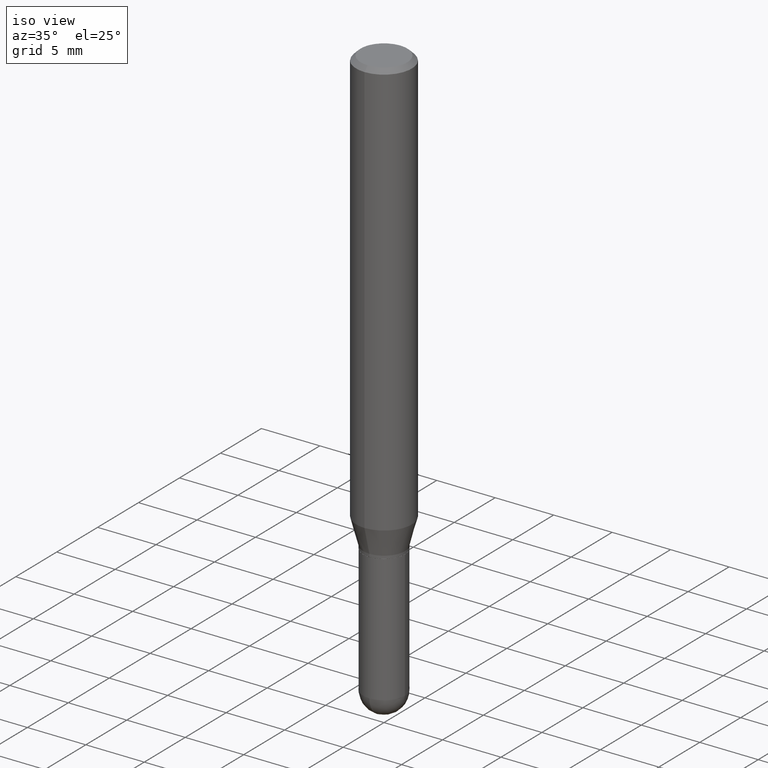
[diagram: clean part render]
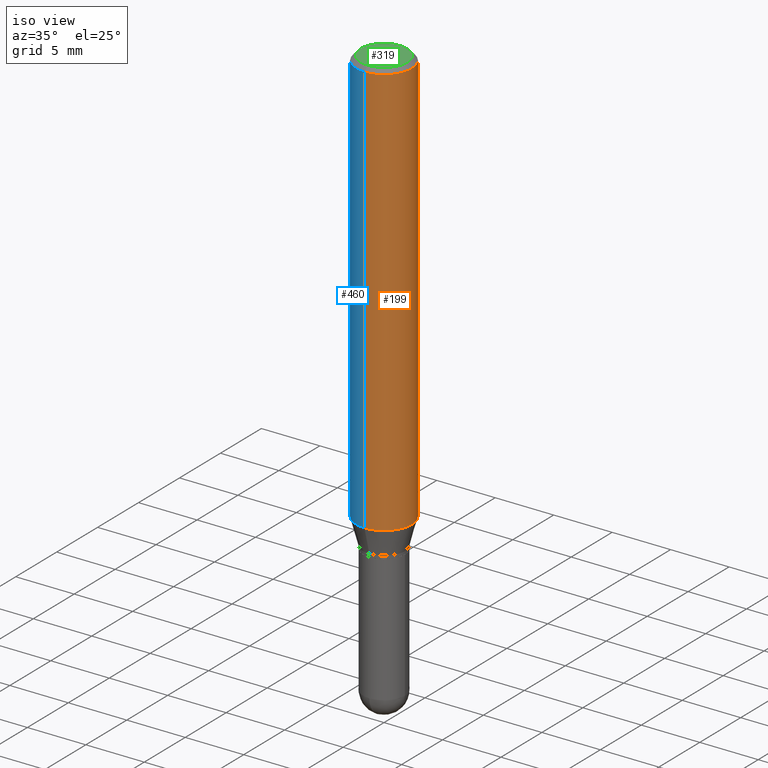
[diagram: same view with three faces highlighted in distinct colors, each labeled with its STEP entity id]
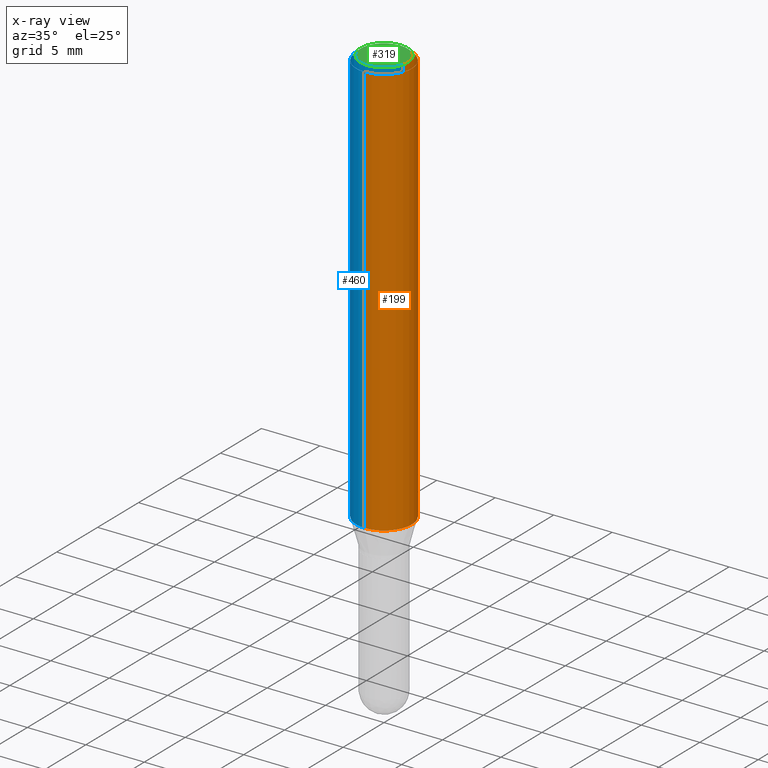
[diagram: x-ray of the same camera — body ghosted, the three highlighted faces saturated]
A machine part, iso view with three faces highlighted in distinct colors.
The next image is the same camera in x-ray (body ghosted, the three faces saturated) — at least one of them is partly hidden behind the body in this view.
Their STEP definitions:

[orange] entity #199 — the highlighted cylindrical surface (edge-blend (fillet) strip) has radius 2.3813 mm, axis along (-0, 0, 1).
#4 = DIRECTION ( 'NONE',  ( -6.982962677686265922E-15, -1.000000000000000000, 3.491768147958502402E-15 ) ) ;
#22 = ORIENTED_EDGE ( 'NONE', *, *, #68, .F. ) ;
#39 = AXIS2_PLACEMENT_3D ( 'NONE', #208, #246, #4 ) ;
#45 = ORIENTED_EDGE ( 'NONE', *, *, #356, .T. ) ;
#60 = CARTESIAN_POINT ( 'NONE',  ( -6.546527510330530901E-16, -0.09375000000000488498, -1.402483408562508638 ) ) ;
#68 = EDGE_CURVE ( 'NONE', #171, #455, #138, .T. ) ;
#81 = DIRECTION ( 'NONE',  ( -2.445268528450320675E-29, 3.491768147958502797E-15, 1.000000000000000000 ) ) ;
#98 = DIRECTION ( 'NONE',  ( -6.982962677686265922E-15, -1.000000000000000000, 3.483106191921935160E-15 ) ) ;
#111 = VECTOR ( 'NONE', #487, 39.37007874015748143 ) ;
#118 = EDGE_CURVE ( 'NONE', #229, #171, #322, .T. ) ;
#120 = CARTESIAN_POINT ( 'NONE',  ( -6.546527510330875041E-16, -0.09375000000000001388, 3.273532638711096618E-16 ) ) ;
#138 = CIRCLE ( 'NONE', #180, 0.09375000000000001388 ) ;
#145 = CARTESIAN_POINT ( 'NONE',  ( 6.661338147750938256E-16, 0.09375000000000001388, -3.273532638711096618E-16 ) ) ;
#165 = VERTEX_POINT ( 'NONE', #327 ) ;
#171 = VERTEX_POINT ( 'NONE', #391 ) ;
#180 = AXIS2_PLACEMENT_3D ( 'NONE', #186, #406, #98 ) ;
#182 = EDGE_CURVE ( 'NONE', #229, #165, #359, .T. ) ;
#186 = CARTESIAN_POINT ( 'NONE',  ( 3.667902792675498004E-31, -5.237652221937778058E-17, -0.01500000000000006883 ) ) ;
#190 = ORIENTED_EDGE ( 'NONE', *, *, #182, .T. ) ;
#199 = ADVANCED_FACE ( 'NONE', ( #469 ), #361, .T. ) ;
#208 = CARTESIAN_POINT ( 'NONE',  ( 0.000000000000000000, 0.000000000000000000, 0.000000000000000000 ) ) ;
#223 = CARTESIAN_POINT ( 'NONE',  ( 6.661338147751283383E-16, 0.09374999999999994449, -0.01500000000000039496 ) ) ;
#229 = VERTEX_POINT ( 'NONE', #60 ) ;
#246 = DIRECTION ( 'NONE',  ( -2.445268528450320675E-29, 3.491768147958502797E-15, 1.000000000000000000 ) ) ;
#285 = DIRECTION ( 'NONE',  ( -6.982962677686265922E-15, -1.000000000000000000, 2.913971193241880372E-15 ) ) ;
#289 = EDGE_LOOP ( 'NONE', ( #190, #45, #22, #429 ) ) ;
#297 = AXIS2_PLACEMENT_3D ( 'NONE', #325, #81, #285 ) ;
#322 = LINE ( 'NONE', #120, #420 ) ;
#325 = CARTESIAN_POINT ( 'NONE',  ( 3.429448540631636149E-29, -4.897146894058840106E-15, -1.402483408562508860 ) ) ;
#327 = CARTESIAN_POINT ( 'NONE',  ( 6.661338147751283383E-16, 0.09374999999999512890, -1.402483408562509304 ) ) ;
#341 = LINE ( 'NONE', #145, #111 ) ;
#356 = EDGE_CURVE ( 'NONE', #165, #455, #341, .T. ) ;
#359 = CIRCLE ( 'NONE', #297, 0.09375000000000001388 ) ;
#361 = CYLINDRICAL_SURFACE ( 'NONE', #39, 0.09375000000000001388 ) ;
#391 = CARTESIAN_POINT ( 'NONE',  ( -6.546527510330871097E-16, -0.09375000000000005551, -0.01499999999999974097 ) ) ;
#406 = DIRECTION ( 'NONE',  ( -2.445268528450320675E-29, 3.491768147958502797E-15, 1.000000000000000000 ) ) ;
#420 = VECTOR ( 'NONE', #467, 39.37007874015748143 ) ;
#429 = ORIENTED_EDGE ( 'NONE', *, *, #118, .F. ) ;
#455 = VERTEX_POINT ( 'NONE', #223 ) ;
#467 = DIRECTION ( 'NONE',  ( -2.445268528450320675E-29, 3.491768147958502797E-15, 1.000000000000000000 ) ) ;
#469 = FACE_OUTER_BOUND ( 'NONE', #289, .T. ) ;
#487 = DIRECTION ( 'NONE',  ( -2.445268528450320675E-29, 3.491768147958502797E-15, 1.000000000000000000 ) ) ;

[blue] entity #460 — the highlighted cylindrical surface (edge-blend (fillet) strip) has radius 2.3813 mm, axis along (-0, 0, 1).
#42 = DIRECTION ( 'NONE',  ( -6.982962677686265922E-15, -1.000000000000000000, 3.483106191921935160E-15 ) ) ;
#60 = CARTESIAN_POINT ( 'NONE',  ( -6.546527510330530901E-16, -0.09375000000000488498, -1.402483408562508638 ) ) ;
#88 = FACE_OUTER_BOUND ( 'NONE', #203, .T. ) ;
#111 = VECTOR ( 'NONE', #487, 39.37007874015748143 ) ;
#118 = EDGE_CURVE ( 'NONE', #229, #171, #322, .T. ) ;
#120 = CARTESIAN_POINT ( 'NONE',  ( -6.546527510330875041E-16, -0.09375000000000001388, 3.273532638711096618E-16 ) ) ;
#139 = ORIENTED_EDGE ( 'NONE', *, *, #118, .T. ) ;
#145 = CARTESIAN_POINT ( 'NONE',  ( 6.661338147750938256E-16, 0.09375000000000001388, -3.273532638711096618E-16 ) ) ;
#157 = CIRCLE ( 'NONE', #344, 0.09375000000000001388 ) ;
#165 = VERTEX_POINT ( 'NONE', #327 ) ;
#171 = VERTEX_POINT ( 'NONE', #391 ) ;
#203 = EDGE_LOOP ( 'NONE', ( #317, #213, #139, #221 ) ) ;
#213 = ORIENTED_EDGE ( 'NONE', *, *, #252, .T. ) ;
#216 = DIRECTION ( 'NONE',  ( -6.982962677686265922E-15, -1.000000000000000000, 3.491768147958502402E-15 ) ) ;
#217 = EDGE_CURVE ( 'NONE', #455, #171, #157, .T. ) ;
#221 = ORIENTED_EDGE ( 'NONE', *, *, #217, .F. ) ;
#223 = CARTESIAN_POINT ( 'NONE',  ( 6.661338147751283383E-16, 0.09374999999999994449, -0.01500000000000039496 ) ) ;
#229 = VERTEX_POINT ( 'NONE', #60 ) ;
#251 = AXIS2_PLACEMENT_3D ( 'NONE', #293, #401, #216 ) ;
#252 = EDGE_CURVE ( 'NONE', #165, #229, #337, .T. ) ;
#278 = AXIS2_PLACEMENT_3D ( 'NONE', #498, #418, #379 ) ;
#293 = CARTESIAN_POINT ( 'NONE',  ( 0.000000000000000000, 0.000000000000000000, 0.000000000000000000 ) ) ;
#317 = ORIENTED_EDGE ( 'NONE', *, *, #356, .F. ) ;
#322 = LINE ( 'NONE', #120, #420 ) ;
#327 = CARTESIAN_POINT ( 'NONE',  ( 6.661338147751283383E-16, 0.09374999999999512890, -1.402483408562509304 ) ) ;
#337 = CIRCLE ( 'NONE', #278, 0.09375000000000001388 ) ;
#341 = LINE ( 'NONE', #145, #111 ) ;
#344 = AXIS2_PLACEMENT_3D ( 'NONE', #435, #399, #42 ) ;
#356 = EDGE_CURVE ( 'NONE', #165, #455, #341, .T. ) ;
#375 = CYLINDRICAL_SURFACE ( 'NONE', #251, 0.09375000000000001388 ) ;
#379 = DIRECTION ( 'NONE',  ( -6.982962677686265922E-15, -1.000000000000000000, 2.913971193241880372E-15 ) ) ;
#391 = CARTESIAN_POINT ( 'NONE',  ( -6.546527510330871097E-16, -0.09375000000000005551, -0.01499999999999974097 ) ) ;
#399 = DIRECTION ( 'NONE',  ( -2.445268528450320675E-29, 3.491768147958502797E-15, 1.000000000000000000 ) ) ;
#401 = DIRECTION ( 'NONE',  ( -2.445268528450320675E-29, 3.491768147958502797E-15, 1.000000000000000000 ) ) ;
#418 = DIRECTION ( 'NONE',  ( -2.445268528450320675E-29, 3.491768147958502797E-15, 1.000000000000000000 ) ) ;
#420 = VECTOR ( 'NONE', #467, 39.37007874015748143 ) ;
#435 = CARTESIAN_POINT ( 'NONE',  ( 3.667902792675498004E-31, -5.237652221937778058E-17, -0.01500000000000006883 ) ) ;
#455 = VERTEX_POINT ( 'NONE', #223 ) ;
#460 = ADVANCED_FACE ( 'NONE', ( #88 ), #375, .T. ) ;
#467 = DIRECTION ( 'NONE',  ( -2.445268528450320675E-29, 3.491768147958502797E-15, 1.000000000000000000 ) ) ;
#487 = DIRECTION ( 'NONE',  ( -2.445268528450320675E-29, 3.491768147958502797E-15, 1.000000000000000000 ) ) ;
#498 = CARTESIAN_POINT ( 'NONE',  ( 3.429448540631636149E-29, -4.897146894058840106E-15, -1.402483408562508860 ) ) ;

[green] entity #319 — the highlighted planar face has unit normal (0, -0, -1).
#7 = AXIS2_PLACEMENT_3D ( 'NONE', #18, #463, #422 ) ;
#16 = AXIS2_PLACEMENT_3D ( 'NONE', #264, #382, #154 ) ;
#18 = CARTESIAN_POINT ( 'NONE',  ( 1.673398044682497217E-45, -2.389560869611909586E-31, -6.843412186484920368E-17 ) ) ;
#34 = CIRCLE ( 'NONE', #16, 0.07875000000000001443 ) ;
#36 = ORIENTED_EDGE ( 'NONE', *, *, #301, .T. ) ;
#50 = ORIENTED_EDGE ( 'NONE', *, *, #90, .T. ) ;
#53 = VERTEX_POINT ( 'NONE', #445 ) ;
#76 = DIRECTION ( 'NONE',  ( 6.982962677686265922E-15, 1.000000000000000000, -3.491768147958502797E-15 ) ) ;
#78 = CARTESIAN_POINT ( 'NONE',  ( 6.022805309504406221E-16, 0.07875000000000001443, -3.434108635165813684E-16 ) ) ;
#90 = EDGE_CURVE ( 'NONE', #53, #132, #34, .T. ) ;
#132 = VERTEX_POINT ( 'NONE', #78 ) ;
#154 = DIRECTION ( 'NONE',  ( -6.982962677686264344E-15, -1.000000000000000000, 3.491768147958503191E-15 ) ) ;
#175 = AXIS2_PLACEMENT_3D ( 'NONE', #185, #318, #76 ) ;
#185 = CARTESIAN_POINT ( 'NONE',  ( 5.499083108677934443E-16, 0.07875000000000001443, -3.091938025841567235E-16 ) ) ;
#264 = CARTESIAN_POINT ( 'NONE',  ( 1.673398044682497217E-45, -2.389560869611909586E-31, -6.843412186484920368E-17 ) ) ;
#301 = EDGE_CURVE ( 'NONE', #132, #53, #370, .T. ) ;
#318 = DIRECTION ( 'NONE',  ( 2.445268528450320395E-29, -3.491768147958502797E-15, -1.000000000000000000 ) ) ;
#319 = ADVANCED_FACE ( 'NONE', ( #320 ), #465, .F. ) ;
#320 = FACE_OUTER_BOUND ( 'NONE', #369, .T. ) ;
#369 = EDGE_LOOP ( 'NONE', ( #36, #50 ) ) ;
#370 = CIRCLE ( 'NONE', #7, 0.07875000000000001443 ) ;
#382 = DIRECTION ( 'NONE',  ( -2.445268528450320675E-29, 3.491768147958502797E-15, 1.000000000000000000 ) ) ;
#422 = DIRECTION ( 'NONE',  ( -6.982962677686264344E-15, -1.000000000000000000, 3.491768147958503191E-15 ) ) ;
#445 = CARTESIAN_POINT ( 'NONE',  ( -5.917179523077944868E-16, -0.07875000000000001443, 2.065426197868829857E-16 ) ) ;
#463 = DIRECTION ( 'NONE',  ( -2.445268528450320675E-29, 3.491768147958502797E-15, 1.000000000000000000 ) ) ;
#465 = PLANE ( 'NONE',  #175 ) ;